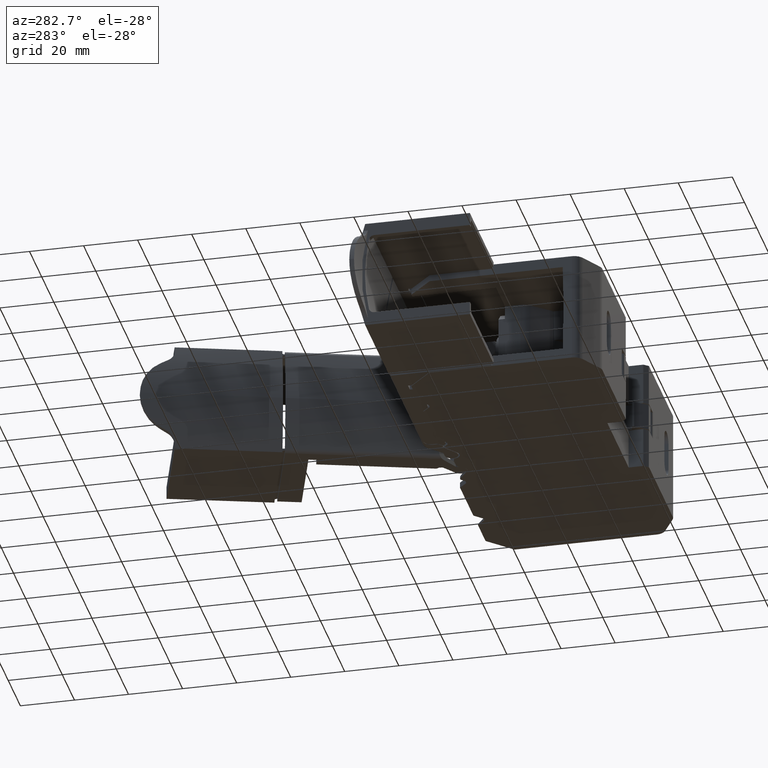
[diagram: clean part render]
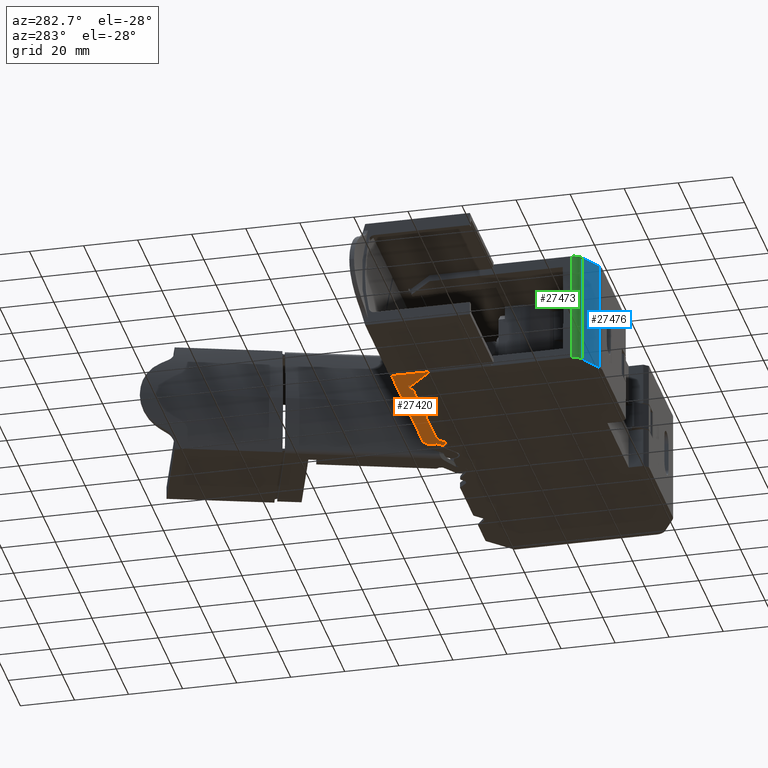
[diagram: same view with three faces highlighted in distinct colors, each labeled with its STEP entity id]
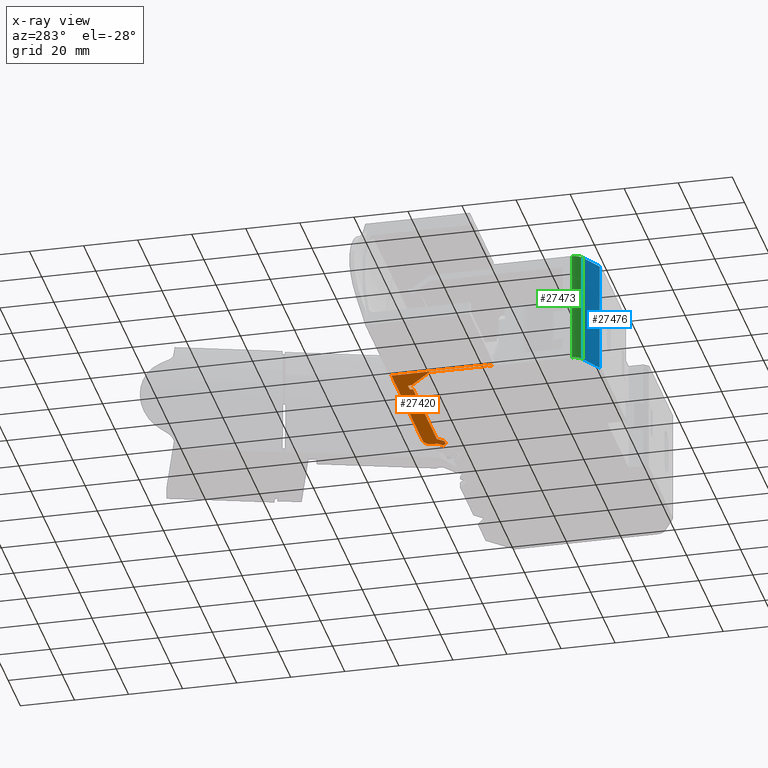
[diagram: x-ray of the same camera — body ghosted, the three highlighted faces saturated]
A machine part, auxiliary view with three faces highlighted in distinct colors.
The next image is the same camera in x-ray (body ghosted, the three faces saturated) — at least one of them is partly hidden behind the body in this view.
Their STEP definitions:

[orange] entity #27420 — the highlighted planar face has unit normal (-0, 0, -1).
#14 = AXIS2_PLACEMENT_3D ( 'NONE', #2622, #2620, #2623 ) ;
#771 = VERTEX_POINT ( 'NONE', #40455 ) ;
#785 = VERTEX_POINT ( 'NONE', #40464 ) ;
#808 = VERTEX_POINT ( 'NONE', #40530 ) ;
#821 = VERTEX_POINT ( 'NONE', #40564 ) ;
#1010 = VERTEX_POINT ( 'NONE', #40607 ) ;
#1026 = VERTEX_POINT ( 'NONE', #40609 ) ;
#1031 = VERTEX_POINT ( 'NONE', #40591 ) ;
#1040 = VERTEX_POINT ( 'NONE', #40593 ) ;
#1054 = VERTEX_POINT ( 'NONE', #40573 ) ;
#1074 = VERTEX_POINT ( 'NONE', #40616 ) ;
#1079 = VERTEX_POINT ( 'NONE', #40597 ) ;
#1086 = VERTEX_POINT ( 'NONE', #40598 ) ;
#1999 = VERTEX_POINT ( 'NONE', #28909 ) ;
#2039 = VERTEX_POINT ( 'NONE', #28939 ) ;
#2052 = VERTEX_POINT ( 'NONE', #28966 ) ;
#2059 = VERTEX_POINT ( 'NONE', #28967 ) ;
#2067 = VERTEX_POINT ( 'NONE', #28946 ) ;
#2087 = VERTEX_POINT ( 'NONE', #28971 ) ;
#2092 = VERTEX_POINT ( 'NONE', #28976 ) ;
#2602 = FACE_OUTER_BOUND ( 'NONE', #16187, .T. ) ;
#2603 = PLANE ( 'NONE',  #14 ) ;
#2620 = DIRECTION ( 'NONE',  ( -1.399743634989590200E-014, 4.407311411525244800E-017, -1.000000000000000000 ) ) ;
#2622 = CARTESIAN_POINT ( 'NONE',  ( -76.78309961592110300, 205.6551190216960100, -7.005957406667870500 ) ) ;
#2623 = DIRECTION ( 'NONE',  ( -1.000000000000000000, 0.0000000000000000000, 1.399743634989590200E-014 ) ) ;
#3825 = CARTESIAN_POINT ( 'NONE',  ( -13.93031846144855000, 288.8302313983720100, -7.005957406668746200 ) ) ;
#3958 = CARTESIAN_POINT ( 'NONE',  ( -13.68977870344218900, 289.0076104638109800, -7.005957406668749800 ) ) ;
#7023 = VERTEX_POINT ( 'NONE', #29000 ) ;
#7135 = VERTEX_POINT ( 'NONE', #29067 ) ;
#8269 = VECTOR ( 'NONE', #35289, 1000.000000000000000 ) ;
#8284 = VECTOR ( 'NONE', #35208, 1000.000000000000000 ) ;
#8402 = VECTOR ( 'NONE', #36239, 1000.000000000000100 ) ;
#8408 = VECTOR ( 'NONE', #36268, 1000.000000000000000 ) ;
#8420 = VECTOR ( 'NONE', #36507, 1000.000000000000000 ) ;
#8440 = VECTOR ( 'NONE', #36380, 1000.000000000000000 ) ;
#8632 = VECTOR ( 'NONE', #26250, 1000.000000000000100 ) ;
#8739 = VECTOR ( 'NONE', #26288, 1000.000000000000000 ) ;
#8906 = VECTOR ( 'NONE', #26214, 1000.000000000000000 ) ;
#9088 = VECTOR ( 'NONE', #26232, 1000.000000000000000 ) ;
#9192 = VECTOR ( 'NONE', #20699, 1000.000000000000000 ) ;
#9505 = VECTOR ( 'NONE', #26103, 1000.000000000000000 ) ;
#9510 = VECTOR ( 'NONE', #26008, 1000.000000000000100 ) ;
#9521 = VECTOR ( 'NONE', #25987, 1000.000000000000000 ) ;
#9522 = VECTOR ( 'NONE', #26097, 1000.000000000000000 ) ;
#9529 = VECTOR ( 'NONE', #26177, 1000.000000000000000 ) ;
#9531 = VECTOR ( 'NONE', #26172, 1000.000000000000000 ) ;
#9537 = VECTOR ( 'NONE', #26063, 1000.000000000000000 ) ;
#12418 = EDGE_CURVE ( 'NONE', #2067, #771, #18862, .T. ) ;
#12422 = EDGE_CURVE ( 'NONE', #2052, #2092, #35178, .T. ) ;
#12438 = EDGE_CURVE ( 'NONE', #771, #2087, #35291, .T. ) ;
#14835 = CARTESIAN_POINT ( 'NONE',  ( -13.77869077649719600, 288.9603255857710500, -7.005957406668748900 ) ) ;
#14856 = CARTESIAN_POINT ( 'NONE',  ( -13.68977870344218900, 289.0076104638109800, -7.005957406668749800 ) ) ;
#14860 = CARTESIAN_POINT ( 'NONE',  ( -13.93031846144855000, 288.8302313983720100, -7.005957406668746200 ) ) ;
#14861 = CARTESIAN_POINT ( 'NONE',  ( -13.85887069583264600, 288.9011992306247400, -7.005957406668747100 ) ) ;
#16187 = EDGE_LOOP ( 'NONE', ( #39707, #39652, #39738, #39744, #39759, #39628, #39689, #39793, #39755, #39695, #39742, #39725, #39787, #39711, #39700, #39713, #39765, #39780, #39757, #39732, #39701, #39763, #39696 ) ) ;
#16267 = EDGE_CURVE ( 'NONE', #1999, #7135, #18865, .T. ) ;
#16282 = EDGE_CURVE ( 'NONE', #2087, #2059, #18953, .T. ) ;
#16290 = EDGE_CURVE ( 'NONE', #785, #37624, #18935, .T. ) ;
#16308 = EDGE_CURVE ( 'NONE', #2059, #785, #36247, .T. ) ;
#16312 = EDGE_CURVE ( 'NONE', #821, #2067, #36287, .T. ) ;
#16329 = EDGE_CURVE ( 'NONE', #808, #821, #36457, .T. ) ;
#16336 = EDGE_CURVE ( 'NONE', #2052, #2039, #36495, .T. ) ;
#18862 = B_SPLINE_CURVE_WITH_KNOTS ( 'NONE', 3,
 ( #35166, #35164, #35167, #35202, #35200, #35188, #35187, #35174, #35168, #35183, #35176, #35163, #35169, #35199, #35201, #35179, #35175, #35205, #35203, #35196 ),
 .UNSPECIFIED., .F., .F.,
 ( 4, 1, 1, 1, 2, 2, 2, 1, 1, 1, 2, 2, 4 ),
 ( 0.0000000000000000000, 0.1250000000000004200, 0.1875000000000017800, 0.2187499999999972800, 0.2343749999999961100, 0.2499999999999949500, 0.5000000000000478500, 0.6250000000000743800, 0.6875000000000733900, 0.7187500000000728300, 0.7343750000000725000, 0.7500000000000722800, 1.000000000000000000 ),
 .UNSPECIFIED. ) ;
#18865 = B_SPLINE_CURVE_WITH_KNOTS ( 'NONE', 3,
 ( #35994, #36005, #36073, #36058 ),
 .UNSPECIFIED., .F., .F.,
 ( 4, 4 ),
 ( 0.0000000000000000000, 1.000000000000000000 ),
 .UNSPECIFIED. ) ;
#18935 = B_SPLINE_CURVE_WITH_KNOTS ( 'NONE', 3,
 ( #36140, #36158, #36126, #36144, #36160, #36148 ),
 .UNSPECIFIED., .F., .F.,
 ( 4, 2, 4 ),
 ( 0.0000000000000000000, 0.5000000000000000000, 1.000000000000000000 ),
 .UNSPECIFIED. ) ;
#18953 = B_SPLINE_CURVE_WITH_KNOTS ( 'NONE', 3,
 ( #36091, #36080, #36101, #36092, #36081, #36083 ),
 .UNSPECIFIED., .F., .F.,
 ( 4, 2, 4 ),
 ( 0.0000000000000000000, 0.5000000000000000000, 1.000000000000000000 ),
 .UNSPECIFIED. ) ;
#19151 = B_SPLINE_CURVE_WITH_KNOTS ( 'NONE', 3,
 ( #14856, #14835, #14861, #14860 ),
 .UNSPECIFIED., .F., .F.,
 ( 4, 4 ),
 ( 0.0000000000000000000, 1.000000000000000000 ),
 .UNSPECIFIED. ) ;
#20699 = DIRECTION ( 'NONE',  ( -0.7071067811864360000, -0.7071067811866590400, 0.0000000000000000000 ) ) ;
#20702 = LINE ( 'NONE', #20729, #9192 ) ;
#20729 = CARTESIAN_POINT ( 'NONE',  ( -13.93031846144816700, 288.8302313983723500, -7.005957406668747100 ) ) ;
#22440 = EDGE_CURVE ( 'NONE', #37624, #37490, #19151, .T. ) ;
#23204 = EDGE_CURVE ( 'NONE', #37490, #7135, #20702, .T. ) ;
#23787 = EDGE_CURVE ( 'NONE', #1040, #1079, #25954, .T. ) ;
#23796 = EDGE_CURVE ( 'NONE', #1026, #7023, #25978, .T. ) ;
#23806 = EDGE_CURVE ( 'NONE', #2092, #1010, #26056, .T. ) ;
#23814 = EDGE_CURVE ( 'NONE', #1026, #808, #26118, .T. ) ;
#23816 = EDGE_CURVE ( 'NONE', #1999, #1086, #26058, .T. ) ;
#23828 = EDGE_CURVE ( 'NONE', #1079, #1031, #26043, .T. ) ;
#23830 = EDGE_CURVE ( 'NONE', #1031, #1074, #26045, .T. ) ;
#23861 = EDGE_CURVE ( 'NONE', #1086, #1054, #26181, .T. ) ;
#23868 = EDGE_CURVE ( 'NONE', #1054, #1040, #26210, .T. ) ;
#23872 = EDGE_CURVE ( 'NONE', #1074, #2039, #26233, .T. ) ;
#23917 = EDGE_CURVE ( 'NONE', #1010, #7023, #26262, .T. ) ;
#25954 = LINE ( 'NONE', #25967, #9510 ) ;
#25967 = CARTESIAN_POINT ( 'NONE',  ( -44.43202612768349300, 287.0029104754315200, -7.005957406668577500 ) ) ;
#25978 = LINE ( 'NONE', #25985, #9521 ) ;
#25985 = CARTESIAN_POINT ( 'NONE',  ( -70.18301121369209700, 228.7414908782774900, -7.005957406667956600 ) ) ;
#25987 = DIRECTION ( 'NONE',  ( 1.585610419494235100E-028, 1.000000000000000000, 2.213679353728626000E-042 ) ) ;
#26008 = DIRECTION ( 'NONE',  ( -0.7071067811865474600, -0.7071067811865474600, -0.0000000000000000000 ) ) ;
#26043 = LINE ( 'NONE', #26183, #9529 ) ;
#26045 = LINE ( 'NONE', #26142, #9531 ) ;
#26056 = LINE ( 'NONE', #26071, #9505 ) ;
#26058 = LINE ( 'NONE', #26109, #9522 ) ;
#26063 = DIRECTION ( 'NONE',  ( -1.000000000000000000, 0.0000000000000000000, 1.399743634989590200E-014 ) ) ;
#26071 = CARTESIAN_POINT ( 'NONE',  ( -61.70504443945959800, 205.6551190216960100, -7.005957406668081000 ) ) ;
#26095 = CARTESIAN_POINT ( 'NONE',  ( -76.78309961592110300, 258.2726315360104600, -7.005957406667867800 ) ) ;
#26097 = DIRECTION ( 'NONE',  ( -1.000000000000000000, 0.0000000000000000000, 1.399743634989590200E-014 ) ) ;
#26103 = DIRECTION ( 'NONE',  ( -6.169106095699447300E-031, -1.000000000000000000, -4.407311411525244800E-017 ) ) ;
#26109 = CARTESIAN_POINT ( 'NONE',  ( -76.78309961592110300, 287.7146863452242700, -7.005957406667866900 ) ) ;
#26118 = LINE ( 'NONE', #26095, #9537 ) ;
#26142 = CARTESIAN_POINT ( 'NONE',  ( -45.93202612768322300, 287.0029104754320300, -7.005957406668310100 ) ) ;
#26172 = DIRECTION ( 'NONE',  ( -0.7071067811865504600, 0.7071067811865445800, -0.0000000000000000000 ) ) ;
#26177 = DIRECTION ( 'NONE',  ( -1.000000000000000000, 0.0000000000000000000, 1.399743634989590200E-014 ) ) ;
#26181 = LINE ( 'NONE', #26194, #8632 ) ;
#26183 = CARTESIAN_POINT ( 'NONE',  ( -76.78309961592110300, 287.7146863452244900, -7.005957406667866900 ) ) ;
#26194 = CARTESIAN_POINT ( 'NONE',  ( -16.43202612768680700, 287.0029104754315200, -7.005957406668702700 ) ) ;
#26207 = CARTESIAN_POINT ( 'NONE',  ( 52.56797425973020000, 290.0029143211451700, -7.005957406668304800 ) ) ;
#26210 = LINE ( 'NONE', #26228, #8906 ) ;
#26214 = DIRECTION ( 'NONE',  ( -1.000000000000000000, -3.137636705720404800E-028, -1.061116271537200500E-041 ) ) ;
#26228 = CARTESIAN_POINT ( 'NONE',  ( 52.56797425973020000, 290.0029143211451700, -7.005957406668688500 ) ) ;
#26232 = DIRECTION ( 'NONE',  ( -1.000000000000000000, -3.137636705720404800E-028, -1.061116271537200500E-041 ) ) ;
#26233 = LINE ( 'NONE', #26207, #9088 ) ;
#26250 = DIRECTION ( 'NONE',  ( -0.7071067811865474600, 0.7071067811865474600, -0.0000000000000000000 ) ) ;
#26262 = LINE ( 'NONE', #26287, #8739 ) ;
#26287 = CARTESIAN_POINT ( 'NONE',  ( -61.43202651511640500, 290.0029143211450000, -7.005957406668080100 ) ) ;
#26288 = DIRECTION ( 'NONE',  ( -0.7071067811865480200, -0.7071067811865470200, -0.0000000000000000000 ) ) ;
#27420 = ADVANCED_FACE ( 'NONE', ( #2602 ), #2603, .T. ) ;
#28909 = CARTESIAN_POINT ( 'NONE',  ( -15.25297029578272000, 287.7146863452242700, -7.005957406668730200 ) ) ;
#28939 = CARTESIAN_POINT ( 'NONE',  ( -58.61129385466274800, 290.0029143211451100, -7.005957406668183100 ) ) ;
#28946 = CARTESIAN_POINT ( 'NONE',  ( -18.79437163229809800, 295.3103294381664900, -7.005957406668553500 ) ) ;
#28966 = CARTESIAN_POINT ( 'NONE',  ( -58.61129385466270500, 291.1526346669655300, -7.005957406668122700 ) ) ;
#28967 = CARTESIAN_POINT ( 'NONE',  ( -15.41361044784038500, 290.2332948387450500, -7.005957406668754200 ) ) ;
#28971 = CARTESIAN_POINT ( 'NONE',  ( -15.79437163229817600, 291.1525336542879900, -7.005957406668735600 ) ) ;
#28976 = CARTESIAN_POINT ( 'NONE',  ( -61.70504443945959800, 291.1526346669655300, -7.005957406668078300 ) ) ;
#29000 = CARTESIAN_POINT ( 'NONE',  ( -70.18301121369208300, 281.2519296225693200, -7.005957406667998400 ) ) ;
#29067 = CARTESIAN_POINT ( 'NONE',  ( -14.89941690518939600, 287.8611329546309900, -7.005957406668739100 ) ) ;
#35163 = CARTESIAN_POINT ( 'NONE',  ( -16.33361464557064500, 294.0487643576277000, -7.005957406668709800 ) ) ;
#35164 = CARTESIAN_POINT ( 'NONE',  ( -18.60346029462450400, 295.3101992075106600, -7.005957406668680500 ) ) ;
#35166 = CARTESIAN_POINT ( 'NONE',  ( -18.79437163229809800, 295.3103294381664900, -7.005957406668553500 ) ) ;
#35167 = CARTESIAN_POINT ( 'NONE',  ( -18.32224127528365200, 295.2837721474172700, -7.005957406668684900 ) ) ;
#35168 = CARTESIAN_POINT ( 'NONE',  ( -17.30551833702394400, 294.9475854184722200, -7.005957406668700000 ) ) ;
#35169 = CARTESIAN_POINT ( 'NONE',  ( -16.15403950151003100, 293.7419088785982800, -7.005957406668714200 ) ) ;
#35174 = CARTESIAN_POINT ( 'NONE',  ( -17.71412307652467500, 295.1092011490339400, -7.005957406668692900 ) ) ;
#35175 = CARTESIAN_POINT ( 'NONE',  ( -16.01376689011824100, 293.4367177285663500, -7.005957406668718700 ) ) ;
#35176 = CARTESIAN_POINT ( 'NONE',  ( -16.52680496118756900, 294.2855035547324300, -7.005957406668709800 ) ) ;
#35178 = LINE ( 'NONE', #35211, #8284 ) ;
#35179 = CARTESIAN_POINT ( 'NONE',  ( -16.02438822693922700, 293.4626475295041200, -7.005957406668716900 ) ) ;
#35183 = CARTESIAN_POINT ( 'NONE',  ( -16.96554394384141100, 294.7239422357145000, -7.005957406668704500 ) ) ;
#35187 = CARTESIAN_POINT ( 'NONE',  ( -17.73443697145125600, 295.1169414614022900, -7.005957406668695600 ) ) ;
#35188 = CARTESIAN_POINT ( 'NONE',  ( -17.77894731388869000, 295.1333688403848300, -7.005957406668692000 ) ) ;
#35196 = CARTESIAN_POINT ( 'NONE',  ( -15.79437163229813900, 292.3103294381664900, -7.005957406668686700 ) ) ;
#35199 = CARTESIAN_POINT ( 'NONE',  ( -16.07570531885284400, 293.5808162018150800, -7.005957406668716000 ) ) ;
#35200 = CARTESIAN_POINT ( 'NONE',  ( -17.84587370214388700, 295.1571901677927500, -7.005957406668690300 ) ) ;
#35201 = CARTESIAN_POINT ( 'NONE',  ( -16.04458782400830700, 293.5101339966361700, -7.005957406668720500 ) ) ;
#35202 = CARTESIAN_POINT ( 'NONE',  ( -18.00316139693269000, 295.2070350776161300, -7.005957406668688500 ) ) ;
#35203 = CARTESIAN_POINT ( 'NONE',  ( -15.79463245405882800, 292.6928522698748900, -7.005957406668721400 ) ) ;
#35205 = CARTESIAN_POINT ( 'NONE',  ( -15.86484415299648300, 293.0609469794370100, -7.005957406668719600 ) ) ;
#35208 = DIRECTION ( 'NONE',  ( -1.000000000000000000, 0.0000000000000000000, 1.399743634989590200E-014 ) ) ;
#35211 = CARTESIAN_POINT ( 'NONE',  ( -76.78309961592110300, 291.1526346669655300, -7.005957406667866900 ) ) ;
#35287 = CARTESIAN_POINT ( 'NONE',  ( -15.79437163229813900, 205.6551190216960100, -7.005957406668724000 ) ) ;
#35289 = DIRECTION ( 'NONE',  ( -6.169106095699447300E-031, -1.000000000000000000, -4.407311411525244800E-017 ) ) ;
#35291 = LINE ( 'NONE', #35287, #8269 ) ;
#35994 = CARTESIAN_POINT ( 'NONE',  ( -15.25297029578272000, 287.7146863452242700, -7.005957406668730200 ) ) ;
#36005 = CARTESIAN_POINT ( 'NONE',  ( -15.12207060188314500, 287.7146863452242100, -7.005957406668735600 ) ) ;
#36058 = CARTESIAN_POINT ( 'NONE',  ( -14.89941690518939600, 287.8611329546309900, -7.005957406668739100 ) ) ;
#36073 = CARTESIAN_POINT ( 'NONE',  ( -14.99197696640107000, 287.7685728934193900, -7.005957406668738200 ) ) ;
#36080 = CARTESIAN_POINT ( 'NONE',  ( -15.79409657405919300, 290.9798441102518000, -7.005957406668720500 ) ) ;
#36081 = CARTESIAN_POINT ( 'NONE',  ( -15.53604171120675100, 290.3561155449841600, -7.005957406668724900 ) ) ;
#36083 = CARTESIAN_POINT ( 'NONE',  ( -15.41361044784038500, 290.2332948387450500, -7.005957406668754200 ) ) ;
#36091 = CARTESIAN_POINT ( 'NONE',  ( -15.79437163229817600, 291.1525336542879900, -7.005957406668735600 ) ) ;
#36092 = CARTESIAN_POINT ( 'NONE',  ( -15.62997657011420900, 290.4966989961401400, -7.005957406668722200 ) ) ;
#36101 = CARTESIAN_POINT ( 'NONE',  ( -15.76085347901133600, 290.8133913882863300, -7.005957406668722200 ) ) ;
#36126 = CARTESIAN_POINT ( 'NONE',  ( -14.10252638332804100, 288.9720652618227600, -7.005957406668745300 ) ) ;
#36140 = CARTESIAN_POINT ( 'NONE',  ( -14.27661560562597600, 289.0962999965304300, -7.005957406668742700 ) ) ;
#36144 = CARTESIAN_POINT ( 'NONE',  ( -13.89303257089200500, 288.9388698891509100, -7.005957406668747100 ) ) ;
#36148 = CARTESIAN_POINT ( 'NONE',  ( -13.68977870344218900, 289.0076104638109800, -7.005957406668749800 ) ) ;
#36158 = CARTESIAN_POINT ( 'NONE',  ( -14.19754221281737600, 289.0193374761537400, -7.005957406668744400 ) ) ;
#36160 = CARTESIAN_POINT ( 'NONE',  ( -13.79036564633606300, 288.9562508519255700, -7.005957406668748900 ) ) ;
#36216 = CARTESIAN_POINT ( 'NONE',  ( -15.41361044784039800, 290.2332948387450500, -7.005957406668725800 ) ) ;
#36239 = DIRECTION ( 'NONE',  ( 0.7071067811864827400, -0.7071067811866123000, -1.024897346420410100E-014 ) ) ;
#36247 = LINE ( 'NONE', #36216, #8402 ) ;
#36268 = DIRECTION ( 'NONE',  ( 1.000000000000000000, -0.0000000000000000000, -1.399743634989590200E-014 ) ) ;
#36285 = CARTESIAN_POINT ( 'NONE',  ( -76.78309961592110300, 295.3103294381670000, -7.005957406667866000 ) ) ;
#36287 = LINE ( 'NONE', #36285, #8408 ) ;
#36370 = CARTESIAN_POINT ( 'NONE',  ( -70.50503776011090900, 205.6551190216960100, -7.005957406667958400 ) ) ;
#36380 = DIRECTION ( 'NONE',  ( 6.169106095699447300E-031, 1.000000000000000000, 4.407311411525244800E-017 ) ) ;
#36457 = LINE ( 'NONE', #36370, #8440 ) ;
#36491 = CARTESIAN_POINT ( 'NONE',  ( -58.61129385466261300, 213.8551210976486300, -7.005957406668122700 ) ) ;
#36495 = LINE ( 'NONE', #36491, #8420 ) ;
#36507 = DIRECTION ( 'NONE',  ( 1.776356839400315200E-015, -1.000000000000000000, -2.486444179420816700E-029 ) ) ;
#37490 = VERTEX_POINT ( 'NONE', #3825 ) ;
#37624 = VERTEX_POINT ( 'NONE', #3958 ) ;
#39628 = ORIENTED_EDGE ( 'NONE', *, *, #23828, .T. ) ;
#39652 = ORIENTED_EDGE ( 'NONE', *, *, #23816, .T. ) ;
#39689 = ORIENTED_EDGE ( 'NONE', *, *, #23830, .T. ) ;
#39695 = ORIENTED_EDGE ( 'NONE', *, *, #12422, .T. ) ;
#39696 = ORIENTED_EDGE ( 'NONE', *, *, #23204, .T. ) ;
#39700 = ORIENTED_EDGE ( 'NONE', *, *, #16329, .T. ) ;
#39701 = ORIENTED_EDGE ( 'NONE', *, *, #16290, .T. ) ;
#39707 = ORIENTED_EDGE ( 'NONE', *, *, #16267, .F. ) ;
#39711 = ORIENTED_EDGE ( 'NONE', *, *, #23814, .T. ) ;
#39713 = ORIENTED_EDGE ( 'NONE', *, *, #16312, .T. ) ;
#39725 = ORIENTED_EDGE ( 'NONE', *, *, #23917, .T. ) ;
#39732 = ORIENTED_EDGE ( 'NONE', *, *, #16308, .T. ) ;
#39738 = ORIENTED_EDGE ( 'NONE', *, *, #23861, .T. ) ;
#39742 = ORIENTED_EDGE ( 'NONE', *, *, #23806, .T. ) ;
#39744 = ORIENTED_EDGE ( 'NONE', *, *, #23868, .T. ) ;
#39755 = ORIENTED_EDGE ( 'NONE', *, *, #16336, .F. ) ;
#39757 = ORIENTED_EDGE ( 'NONE', *, *, #16282, .T. ) ;
#39759 = ORIENTED_EDGE ( 'NONE', *, *, #23787, .T. ) ;
#39763 = ORIENTED_EDGE ( 'NONE', *, *, #22440, .T. ) ;
#39765 = ORIENTED_EDGE ( 'NONE', *, *, #12418, .T. ) ;
#39780 = ORIENTED_EDGE ( 'NONE', *, *, #12438, .T. ) ;
#39787 = ORIENTED_EDGE ( 'NONE', *, *, #23796, .F. ) ;
#39793 = ORIENTED_EDGE ( 'NONE', *, *, #23872, .T. ) ;
#40455 = CARTESIAN_POINT ( 'NONE',  ( -15.79437163229813900, 292.3103294381664900, -7.005957406668686700 ) ) ;
#40464 = CARTESIAN_POINT ( 'NONE',  ( -14.27661560562597600, 289.0962999965304300, -7.005957406668742700 ) ) ;
#40530 = CARTESIAN_POINT ( 'NONE',  ( -70.50503776011090900, 258.2726315360104100, -7.005957406667956600 ) ) ;
#40564 = CARTESIAN_POINT ( 'NONE',  ( -70.50503776011092300, 295.3103294381670000, -7.005957406667961100 ) ) ;
#40573 = CARTESIAN_POINT ( 'NONE',  ( -19.43202997340038600, 290.0029143211451100, -7.005957406668691200 ) ) ;
#40591 = CARTESIAN_POINT ( 'NONE',  ( -46.64380199747564100, 287.7146863452244400, -7.005957406668310100 ) ) ;
#40593 = CARTESIAN_POINT ( 'NONE',  ( -41.43202228196997100, 290.0029143211451100, -7.005957406668579200 ) ) ;
#40597 = CARTESIAN_POINT ( 'NONE',  ( -43.72025025789049800, 287.7146863452244900, -7.005957406668330600 ) ) ;
#40598 = CARTESIAN_POINT ( 'NONE',  ( -17.14380199747950300, 287.7146863452242700, -7.005957406668701800 ) ) ;
#40607 = CARTESIAN_POINT ( 'NONE',  ( -61.70504443945912200, 289.7298963968025300, -7.005957406668080100 ) ) ;
#40609 = CARTESIAN_POINT ( 'NONE',  ( -70.18301121369209700, 258.2726315360104600, -7.005957406667957500 ) ) ;
#40616 = CARTESIAN_POINT ( 'NONE',  ( -48.93202997339651700, 290.0029143211451700, -7.005957406668306600 ) ) ;

[blue] entity #27476 — the highlighted planar face has unit normal (-0.5, -0.866, -0).
#2863 = PLANE ( 'NONE',  #3387 ) ;
#2875 = CARTESIAN_POINT ( 'NONE',  ( -68.43297629263570100, 225.2773892631410000, 180.3432859664320100 ) ) ;
#2879 = FACE_OUTER_BOUND ( 'NONE', #7801, .T. ) ;
#2880 = DIRECTION ( 'NONE',  ( 0.8660254037844387100, -0.4999999999999998900, 0.0000000000000000000 ) ) ;
#2891 = DIRECTION ( 'NONE',  ( -0.4999999999999998900, -0.8660254037844387100, -3.626959843572309500E-014 ) ) ;
#3387 = AXIS2_PLACEMENT_3D ( 'NONE', #2875, #2891, #2880 ) ;
#6994 = VERTEX_POINT ( 'NONE', #29028 ) ;
#7041 = VERTEX_POINT ( 'NONE', #29006 ) ;
#7110 = VERTEX_POINT ( 'NONE', #29082 ) ;
#7161 = VERTEX_POINT ( 'NONE', #29111 ) ;
#7591 = VECTOR ( 'NONE', #26436, 1000.000000000000000 ) ;
#7717 = VECTOR ( 'NONE', #26740, 1000.000000000000000 ) ;
#7801 = EDGE_LOOP ( 'NONE', ( #40360, #40284, #40366, #40361 ) ) ;
#9417 = VECTOR ( 'NONE', #22575, 1000.000000000000000 ) ;
#9468 = VECTOR ( 'NONE', #22764, 1000.000000000000200 ) ;
#22575 = DIRECTION ( 'NONE',  ( 1.396105453466134000E-014, 3.381896538890620300E-014, -1.000000000000000000 ) ) ;
#22637 = CARTESIAN_POINT ( 'NONE',  ( -60.21764038936896000, 220.5342628679063600, 180.3432859664323800 ) ) ;
#22653 = LINE ( 'NONE', #22637, #9417 ) ;
#22711 = LINE ( 'NONE', #22743, #9468 ) ;
#22743 = CARTESIAN_POINT ( 'NONE',  ( -68.18301121369205500, 225.1330718575328000, -7.220030400046336900 ) ) ;
#22764 = DIRECTION ( 'NONE',  ( 0.8660254037844192800, -0.5000000000000334200, -4.809446178049095700E-015 ) ) ;
#23509 = EDGE_CURVE ( 'NONE', #6994, #7110, #22653, .T. ) ;
#23551 = EDGE_CURVE ( 'NONE', #7161, #7110, #22711, .T. ) ;
#24018 = EDGE_CURVE ( 'NONE', #6994, #7041, #26400, .T. ) ;
#24235 = EDGE_CURVE ( 'NONE', #7041, #7161, #26758, .T. ) ;
#26396 = CARTESIAN_POINT ( 'NONE',  ( -68.43297629263304300, 225.2773892631455800, 34.17996959994251700 ) ) ;
#26400 = LINE ( 'NONE', #26396, #7591 ) ;
#26436 = DIRECTION ( 'NONE',  ( -0.8660254037844387100, 0.4999999999999998900, -0.0000000000000000000 ) ) ;
#26740 = DIRECTION ( 'NONE',  ( 1.813479921786154500E-014, 3.141039363039654000E-014, -1.000000000000000000 ) ) ;
#26758 = LINE ( 'NONE', #26773, #7717 ) ;
#26773 = CARTESIAN_POINT ( 'NONE',  ( -68.18301121369530900, 225.1330718575267700, 180.3432859664320100 ) ) ;
#27476 = ADVANCED_FACE ( 'NONE', ( #2879 ), #2863, .T. ) ;
#29006 = CARTESIAN_POINT ( 'NONE',  ( -68.18301121369266600, 225.1330718575313500, 34.17996959994244600 ) ) ;
#29028 = CARTESIAN_POINT ( 'NONE',  ( -60.21764038936688500, 220.5342628679114800, 34.17996959994251700 ) ) ;
#29082 = CARTESIAN_POINT ( 'NONE',  ( -60.21764038936645100, 220.5342628679127900, -7.220030400046392000 ) ) ;
#29111 = CARTESIAN_POINT ( 'NONE',  ( -68.18301121369205500, 225.1330718575327700, -7.220030400046320900 ) ) ;
#40284 = ORIENTED_EDGE ( 'NONE', *, *, #23509, .F. ) ;
#40360 = ORIENTED_EDGE ( 'NONE', *, *, #23551, .T. ) ;
#40361 = ORIENTED_EDGE ( 'NONE', *, *, #24235, .T. ) ;
#40366 = ORIENTED_EDGE ( 'NONE', *, *, #24018, .T. ) ;

[green] entity #27473 — the highlighted cylindrical surface (edge-blend (fillet) strip) has radius 4 mm, axis along (0, 0, -1).
#2872 = FACE_OUTER_BOUND ( 'NONE', #38909, .T. ) ;
#2873 = CARTESIAN_POINT ( 'NONE',  ( -66.18301121369469800, 228.5971734726641400, 180.3432859664321500 ) ) ;
#2888 = DIRECTION ( 'NONE',  ( 0.0000000000000000000, 1.000000000000000000, 3.469446951953611000E-014 ) ) ;
#2889 = CYLINDRICAL_SURFACE ( 'NONE', #3380, 4.000000000000003600 ) ;
#2894 = DIRECTION ( 'NONE',  ( 1.396105453466134000E-014, 3.382010624677094600E-014, -1.000000000000000000 ) ) ;
#3380 = AXIS2_PLACEMENT_3D ( 'NONE', #2873, #2894, #2888 ) ;
#6990 = VERTEX_POINT ( 'NONE', #29014 ) ;
#7041 = VERTEX_POINT ( 'NONE', #29006 ) ;
#7088 = VERTEX_POINT ( 'NONE', #29042 ) ;
#7161 = VERTEX_POINT ( 'NONE', #29111 ) ;
#7625 = CIRCLE ( 'NONE', #7643, 4.000000000000003600 ) ;
#7643 = AXIS2_PLACEMENT_3D ( 'NONE', #26326, #26316, #26306 ) ;
#7650 = AXIS2_PLACEMENT_3D ( 'NONE', #26611, #26601, #26582 ) ;
#7707 = CIRCLE ( 'NONE', #7650, 4.000000000000003600 ) ;
#7710 = VECTOR ( 'NONE', #26592, 1000.000000000000000 ) ;
#7717 = VECTOR ( 'NONE', #26740, 1000.000000000000000 ) ;
#23954 = EDGE_CURVE ( 'NONE', #7041, #6990, #7625, .T. ) ;
#24126 = EDGE_CURVE ( 'NONE', #7088, #7161, #7707, .T. ) ;
#24135 = EDGE_CURVE ( 'NONE', #6990, #7088, #26613, .T. ) ;
#24235 = EDGE_CURVE ( 'NONE', #7041, #7161, #26758, .T. ) ;
#26306 = DIRECTION ( 'NONE',  ( 0.0000000000000000000, 1.000000000000000000, 3.295974604355930300E-014 ) ) ;
#26316 = DIRECTION ( 'NONE',  ( 1.396105453466134000E-014, 3.382010624677094600E-014, -1.000000000000000000 ) ) ;
#26326 = CARTESIAN_POINT ( 'NONE',  ( -66.18301121369266600, 228.5971734726690800, 34.17996959994251700 ) ) ;
#26582 = DIRECTION ( 'NONE',  ( 0.0000000000000000000, 1.000000000000000000, 3.382710778154770700E-014 ) ) ;
#26592 = DIRECTION ( 'NONE',  ( 1.396105453466134000E-014, 3.382010624677094600E-014, -1.000000000000000000 ) ) ;
#26601 = DIRECTION ( 'NONE',  ( -1.396105453466134000E-014, -3.382010624677094600E-014, 1.000000000000000000 ) ) ;
#26611 = CARTESIAN_POINT ( 'NONE',  ( -66.18301121369208300, 228.5971734726705100, -7.220030400046178800 ) ) ;
#26613 = LINE ( 'NONE', #26615, #7710 ) ;
#26615 = CARTESIAN_POINT ( 'NONE',  ( -70.18301121369469800, 228.5971734726641400, 180.3432859664320900 ) ) ;
#26740 = DIRECTION ( 'NONE',  ( 1.813479921786154500E-014, 3.141039363039654000E-014, -1.000000000000000000 ) ) ;
#26758 = LINE ( 'NONE', #26773, #7717 ) ;
#26773 = CARTESIAN_POINT ( 'NONE',  ( -68.18301121369530900, 225.1330718575267700, 180.3432859664320100 ) ) ;
#27473 = ADVANCED_FACE ( 'NONE', ( #2872 ), #2889, .T. ) ;
#29006 = CARTESIAN_POINT ( 'NONE',  ( -68.18301121369266600, 225.1330718575313500, 34.17996959994244600 ) ) ;
#29014 = CARTESIAN_POINT ( 'NONE',  ( -70.18301121369266600, 228.5971734726690800, 34.17996959994236800 ) ) ;
#29042 = CARTESIAN_POINT ( 'NONE',  ( -70.18301121369208300, 228.5971734726705100, -7.220030400046238300 ) ) ;
#29111 = CARTESIAN_POINT ( 'NONE',  ( -68.18301121369205500, 225.1330718575327700, -7.220030400046320900 ) ) ;
#38909 = EDGE_LOOP ( 'NONE', ( #40331, #40319, #40359, #40291 ) ) ;
#40291 = ORIENTED_EDGE ( 'NONE', *, *, #24135, .T. ) ;
#40319 = ORIENTED_EDGE ( 'NONE', *, *, #24235, .F. ) ;
#40331 = ORIENTED_EDGE ( 'NONE', *, *, #24126, .T. ) ;
#40359 = ORIENTED_EDGE ( 'NONE', *, *, #23954, .T. ) ;